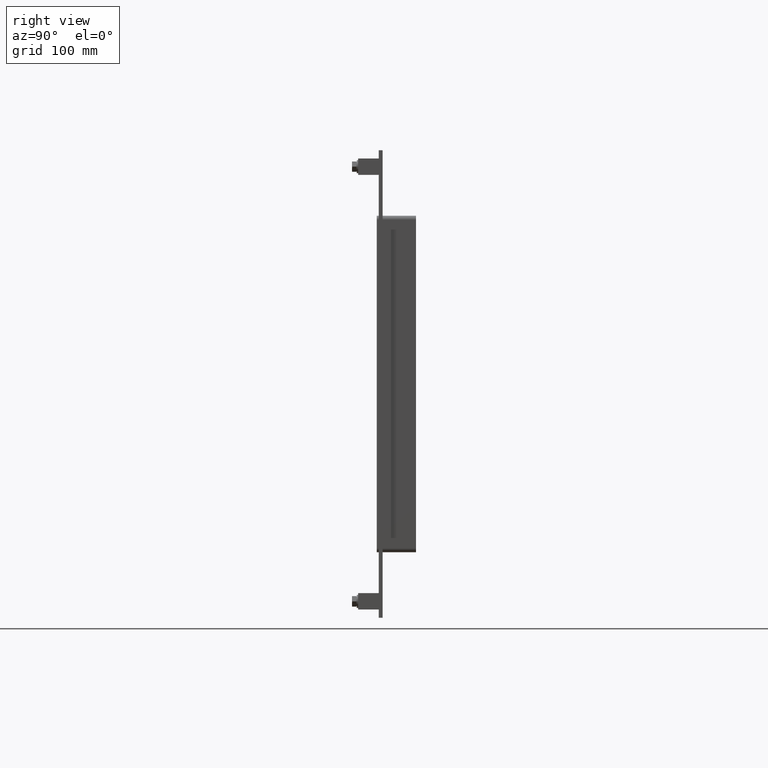
[diagram: clean part render]
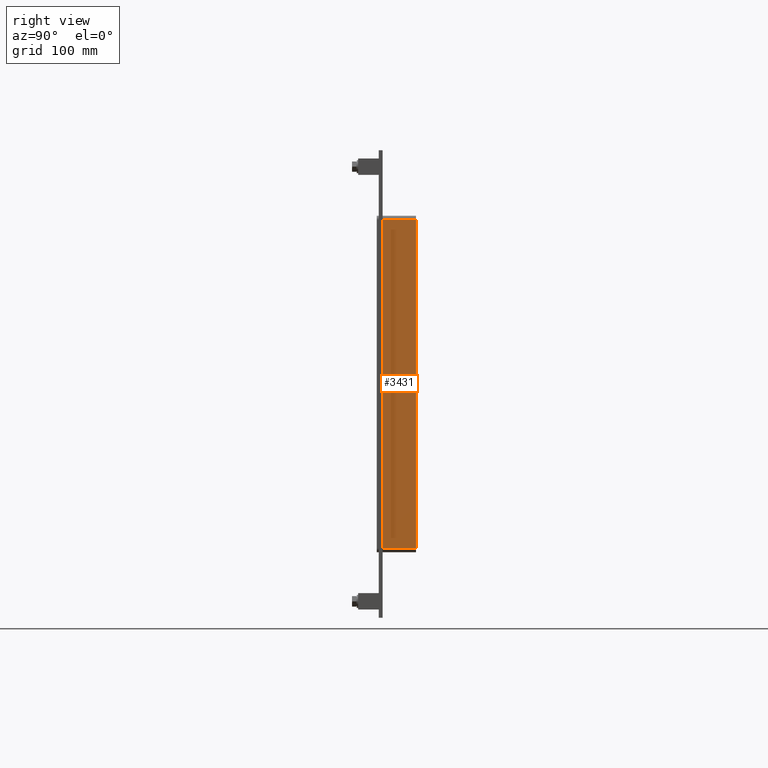
[diagram: same view with one face highlighted and labeled with its STEP entity id]
A machine part, right view. The second image highlights one B-rep face of the part: STEP entity #3431.
In plain terms, the highlighted planar face has unit normal (1, 0, 0).
Its self-contained STEP definition (entity closure, byte-faithful):
#1385=CARTESIAN_POINT('',(327.25,57.0,251.25));
#1386=VERTEX_POINT('',#1385);
#1394=CARTESIAN_POINT('',(327.25,57.0,-251.25));
#1395=VERTEX_POINT('',#1394);
#1396=CARTESIAN_POINT('',(327.25,57.0,251.25));
#1397=DIRECTION('',(0.0,0.0,-1.0));
#1398=VECTOR('',#1397,502.5);
#1399=LINE('',#1396,#1398);
#1400=EDGE_CURVE('',#1386,#1395,#1399,.T.);
#2881=CARTESIAN_POINT('',(327.25,6.000000000000001,-251.25));
#2882=VERTEX_POINT('',#2881);
#2890=CARTESIAN_POINT('',(327.25,6.000000000000001,251.25));
#2891=VERTEX_POINT('',#2890);
#2892=CARTESIAN_POINT('',(327.25,6.000000000000001,251.25));
#2893=DIRECTION('',(0.0,0.0,-1.0));
#2894=VECTOR('',#2893,502.5);
#2895=LINE('',#2892,#2894);
#2896=EDGE_CURVE('',#2891,#2882,#2895,.T.);
#3195=CARTESIAN_POINT('',(327.25,57.0,-251.25));
#3196=DIRECTION('',(0.0,-1.0,0.0));
#3197=VECTOR('',#3196,51.0);
#3198=LINE('',#3195,#3197);
#3199=EDGE_CURVE('',#1395,#2882,#3198,.T.);
#3409=CARTESIAN_POINT('',(327.25,6.000000000000001,251.25));
#3410=DIRECTION('',(0.0,1.0,0.0));
#3411=VECTOR('',#3410,51.0);
#3412=LINE('',#3409,#3411);
#3413=EDGE_CURVE('',#2891,#1386,#3412,.T.);
#3420=CARTESIAN_POINT('',(327.25,0.0,257.25));
#3421=DIRECTION('',(1.0,0.0,0.0));
#3422=DIRECTION('',(0.0,0.0,-1.0));
#3423=AXIS2_PLACEMENT_3D('',#3420,#3421,#3422);
#3424=PLANE('',#3423);
#3425=ORIENTED_EDGE('',*,*,#2896,.T.);
#3426=ORIENTED_EDGE('',*,*,#3199,.F.);
#3427=ORIENTED_EDGE('',*,*,#1400,.F.);
#3428=ORIENTED_EDGE('',*,*,#3413,.F.);
#3429=EDGE_LOOP('',(#3425,#3426,#3427,#3428));
#3430=FACE_OUTER_BOUND('',#3429,.T.);
#3431=ADVANCED_FACE('',(#3430),#3424,.T.);